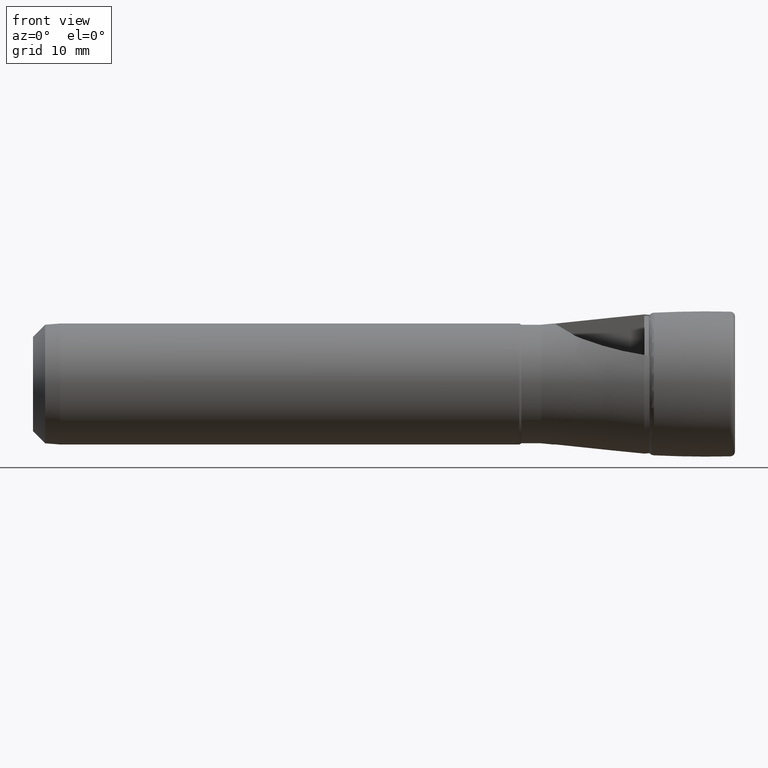
[diagram: clean part render]
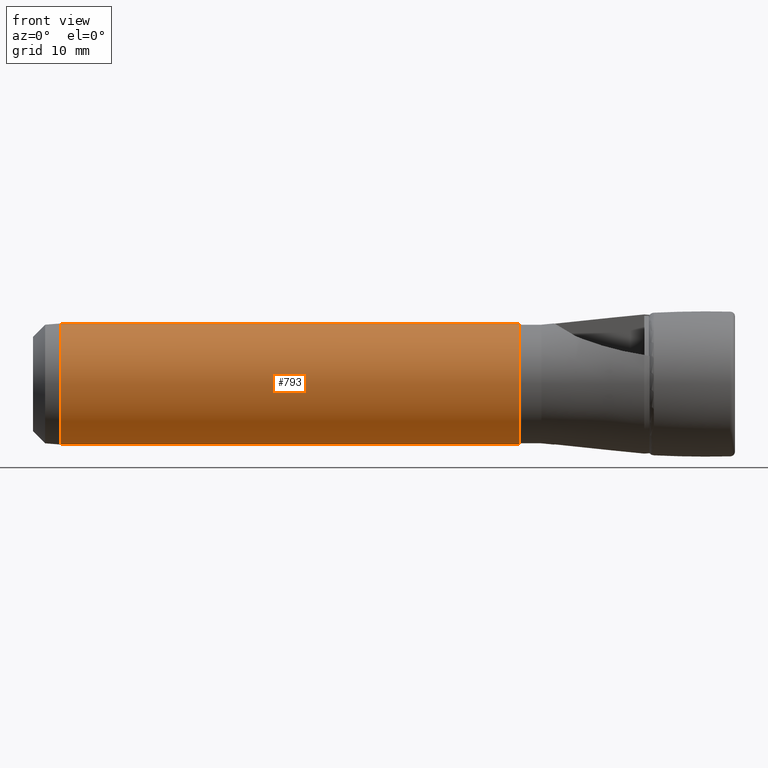
[diagram: same view with one face highlighted and labeled with its STEP entity id]
A machine part, front view. The second image highlights one B-rep face of the part: STEP entity #793.
In plain terms, the highlighted cylindrical surface (partial cylindrical patch) has radius 5 mm, axis along (1, -0, -0).
Its self-contained STEP definition (entity closure, byte-faithful):
#9 = AXIS2_PLACEMENT_3D ( 'NONE', #690, #691, #692 ) ;
#26 = VECTOR ( 'NONE', #2952, 1000.000000000000000 ) ;
#38 = CIRCLE ( 'NONE', #9, 4.999999999999994700 ) ;
#39 = VECTOR ( 'NONE', #2959, 1000.000000000000000 ) ;
#120 = EDGE_LOOP ( 'NONE', ( #1603, #1570, #1569, #1632 ) ) ;
#132 = EDGE_CURVE ( 'NONE', #2432, #2347, #38, .T. ) ;
#690 = CARTESIAN_POINT ( 'NONE',  ( -55.24999999999996400, 0.0000000000000000000, 0.0000000000000000000 ) ) ;
#691 = DIRECTION ( 'NONE',  ( 1.000000000000000000, -0.0000000000000000000, -0.0000000000000000000 ) ) ;
#692 = DIRECTION ( 'NONE',  ( 0.0000000000000000000, 0.0000000000000000000, -1.000000000000000000 ) ) ;
#793 = ADVANCED_FACE ( 'NONE', ( #2029 ), #2028, .T. ) ;
#1120 = EDGE_CURVE ( 'NONE', #2430, #2434, #1322, .T. ) ;
#1237 = EDGE_CURVE ( 'NONE', #2432, #2434, #2948, .T. ) ;
#1239 = EDGE_CURVE ( 'NONE', #2347, #2430, #2947, .T. ) ;
#1322 = CIRCLE ( 'NONE', #1480, 4.999999999999994700 ) ;
#1410 = AXIS2_PLACEMENT_3D ( 'NONE', #2030, #2026, #2032 ) ;
#1480 = AXIS2_PLACEMENT_3D ( 'NONE', #2243, #2244, #2245 ) ;
#1569 = ORIENTED_EDGE ( 'NONE', *, *, #1239, .T. ) ;
#1570 = ORIENTED_EDGE ( 'NONE', *, *, #132, .T. ) ;
#1603 = ORIENTED_EDGE ( 'NONE', *, *, #1237, .F. ) ;
#1632 = ORIENTED_EDGE ( 'NONE', *, *, #1120, .T. ) ;
#2026 = DIRECTION ( 'NONE',  ( 1.000000000000000000, -0.0000000000000000000, -0.0000000000000000000 ) ) ;
#2028 = CYLINDRICAL_SURFACE ( 'NONE', #1410, 4.999999999999994700 ) ;
#2029 = FACE_OUTER_BOUND ( 'NONE', #120, .T. ) ;
#2030 = CARTESIAN_POINT ( 'NONE',  ( 0.0000000000000000000, 0.0000000000000000000, 0.0000000000000000000 ) ) ;
#2032 = DIRECTION ( 'NONE',  ( 0.0000000000000000000, 0.0000000000000000000, -1.000000000000000000 ) ) ;
#2243 = CARTESIAN_POINT ( 'NONE',  ( -17.32679491924311000, 0.0000000000000000000, 0.0000000000000000000 ) ) ;
#2244 = DIRECTION ( 'NONE',  ( -1.000000000000000000, 0.0000000000000000000, 0.0000000000000000000 ) ) ;
#2245 = DIRECTION ( 'NONE',  ( 0.0000000000000000000, 0.0000000000000000000, 1.000000000000000000 ) ) ;
#2347 = VERTEX_POINT ( 'NONE', #2978 ) ;
#2430 = VERTEX_POINT ( 'NONE', #3063 ) ;
#2432 = VERTEX_POINT ( 'NONE', #3065 ) ;
#2434 = VERTEX_POINT ( 'NONE', #3067 ) ;
#2940 = CARTESIAN_POINT ( 'NONE',  ( 0.0000000000000000000, 6.123233995736760400E-016, 4.999999999999994700 ) ) ;
#2946 = CARTESIAN_POINT ( 'NONE',  ( 0.0000000000000000000, 0.0000000000000000000, -4.999999999999994700 ) ) ;
#2947 = LINE ( 'NONE', #2946, #39 ) ;
#2948 = LINE ( 'NONE', #2940, #26 ) ;
#2952 = DIRECTION ( 'NONE',  ( 1.000000000000000000, -0.0000000000000000000, -0.0000000000000000000 ) ) ;
#2959 = DIRECTION ( 'NONE',  ( 1.000000000000000000, -0.0000000000000000000, -0.0000000000000000000 ) ) ;
#2978 = CARTESIAN_POINT ( 'NONE',  ( -55.24999999999996400, 0.0000000000000000000, -4.999999999999994700 ) ) ;
#3063 = CARTESIAN_POINT ( 'NONE',  ( -17.32679491924311000, 6.123233995736760400E-016, -4.999999999999994700 ) ) ;
#3065 = CARTESIAN_POINT ( 'NONE',  ( -55.24999999999996400, 6.123233995736760400E-016, 4.999999999999994700 ) ) ;
#3067 = CARTESIAN_POINT ( 'NONE',  ( -17.32679491924311000, 0.0000000000000000000, 4.999999999999994700 ) ) ;